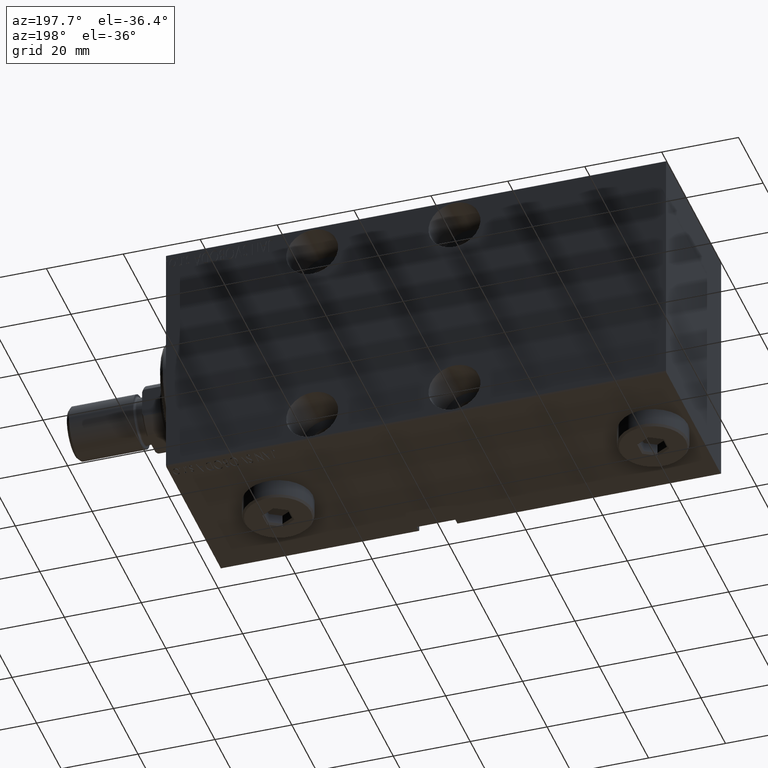
[diagram: clean part render]
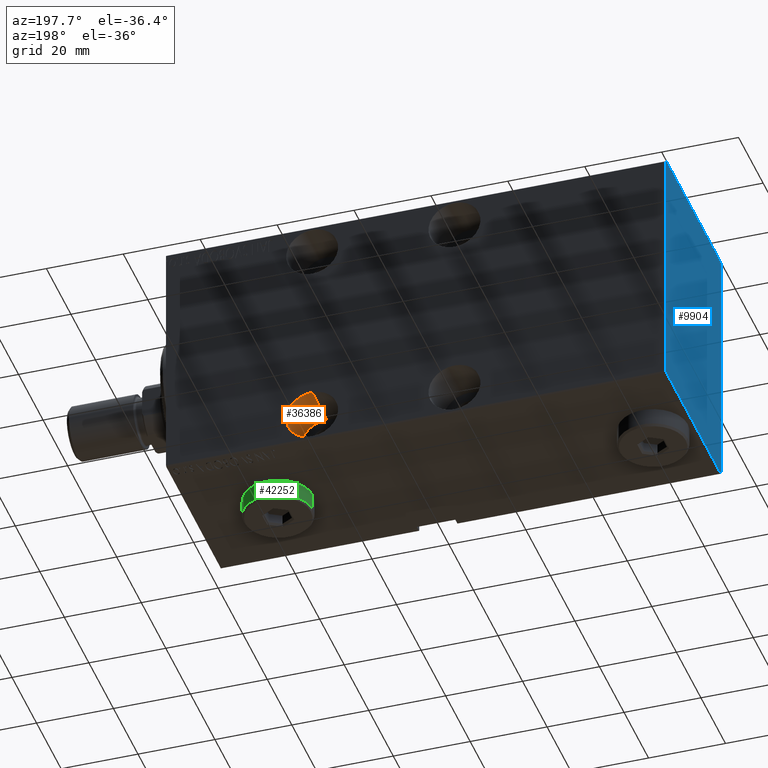
[diagram: same view with three faces highlighted in distinct colors, each labeled with its STEP entity id]
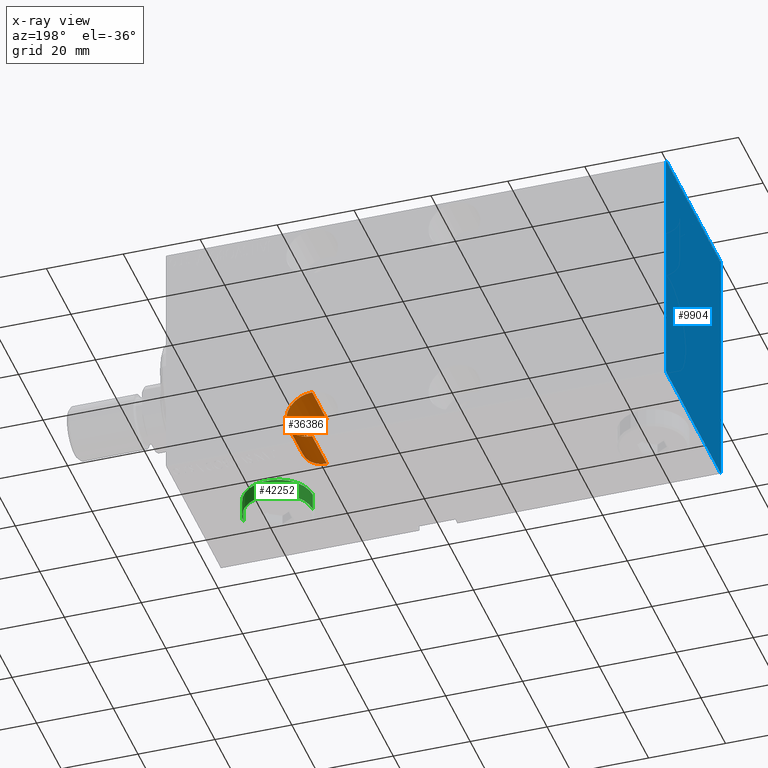
[diagram: x-ray of the same camera — body ghosted, the three highlighted faces saturated]
A machine part, auxiliary view with three faces highlighted in distinct colors.
The next image is the same camera in x-ray (body ghosted, the three faces saturated) — at least one of them is partly hidden behind the body in this view.
Their STEP definitions:

[orange] entity #36386 — the highlighted cylindrical surface (edge-blend (fillet) strip) has radius 6.75 mm, axis along (-0, 1, 0).
#695 = ORIENTED_EDGE ( 'NONE', *, *, #33101, .T. ) ;
#2848 = VERTEX_POINT ( 'NONE', #17039 ) ;
#3810 = DIRECTION ( 'NONE',  ( -0.000000000000000000, -1.000000000000000000, -0.000000000000000000 ) ) ;
#4310 = AXIS2_PLACEMENT_3D ( 'NONE', #9493, #23614, #33088 ) ;
#5292 = DIRECTION ( 'NONE',  ( 0.000000000000000000, -1.000000000000000000, 0.000000000000000000 ) ) ;
#6207 = EDGE_CURVE ( 'NONE', #36743, #26694, #41287, .T. ) ;
#7326 = CARTESIAN_POINT ( 'NONE',  ( 38.00000000000001421, -10.49999999999999467, -18.25000000000000355 ) ) ;
#7635 = LINE ( 'NONE', #41532, #21285 ) ;
#9493 = CARTESIAN_POINT ( 'NONE',  ( 38.00000000000001421, -22.49999999999999645, -25.00000000000000355 ) ) ;
#11358 = CARTESIAN_POINT ( 'NONE',  ( 38.00000000000001421, -10.49999999999999467, -31.75000000000000711 ) ) ;
#12230 = CARTESIAN_POINT ( 'NONE',  ( 38.00000000000001421, -22.49999999999999645, -31.75000000000000711 ) ) ;
#12418 = DIRECTION ( 'NONE',  ( -0.000000000000000000, -1.000000000000000000, -0.000000000000000000 ) ) ;
#12572 = VECTOR ( 'NONE', #41862, 1000.000000000000000 ) ;
#13393 = EDGE_LOOP ( 'NONE', ( #21019, #695, #35589, #26908 ) ) ;
#17039 = CARTESIAN_POINT ( 'NONE',  ( 38.00000000000001421, -22.49999999999999645, -18.25000000000000355 ) ) ;
#17081 = AXIS2_PLACEMENT_3D ( 'NONE', #33506, #12418, #30148 ) ;
#18529 = DIRECTION ( 'NONE',  ( 0.000000000000000000, 0.000000000000000000, -1.000000000000000000 ) ) ;
#21019 = ORIENTED_EDGE ( 'NONE', *, *, #6207, .F. ) ;
#21285 = VECTOR ( 'NONE', #3810, 1000.000000000000000 ) ;
#22554 = EDGE_CURVE ( 'NONE', #26694, #28512, #35148, .T. ) ;
#23614 = DIRECTION ( 'NONE',  ( 0.000000000000000000, -1.000000000000000000, 0.000000000000000000 ) ) ;
#25953 = CARTESIAN_POINT ( 'NONE',  ( 38.00000000000001421, -10.49999999999999467, -25.00000000000000355 ) ) ;
#26257 = AXIS2_PLACEMENT_3D ( 'NONE', #25953, #5292, #18529 ) ;
#26694 = VERTEX_POINT ( 'NONE', #44107 ) ;
#26754 = FACE_OUTER_BOUND ( 'NONE', #13393, .T. ) ;
#26908 = ORIENTED_EDGE ( 'NONE', *, *, #22554, .F. ) ;
#28512 = VERTEX_POINT ( 'NONE', #12230 ) ;
#30148 = DIRECTION ( 'NONE',  ( 0.000000000000000000, 0.000000000000000000, -1.000000000000000000 ) ) ;
#33088 = DIRECTION ( 'NONE',  ( 0.000000000000000000, 0.000000000000000000, -1.000000000000000000 ) ) ;
#33101 = EDGE_CURVE ( 'NONE', #36743, #2848, #7635, .T. ) ;
#33506 = CARTESIAN_POINT ( 'NONE',  ( 38.00000000000001421, -10.49999999999999467, -25.00000000000000355 ) ) ;
#34428 = CIRCLE ( 'NONE', #4310, 6.750000000000002665 ) ;
#35148 = LINE ( 'NONE', #11358, #12572 ) ;
#35589 = ORIENTED_EDGE ( 'NONE', *, *, #44259, .T. ) ;
#36386 = ADVANCED_FACE ( 'NONE', ( #26754 ), #36438, .F. ) ;
#36438 = CYLINDRICAL_SURFACE ( 'NONE', #17081, 6.750000000000002665 ) ;
#36743 = VERTEX_POINT ( 'NONE', #7326 ) ;
#41287 = CIRCLE ( 'NONE', #26257, 6.750000000000002665 ) ;
#41532 = CARTESIAN_POINT ( 'NONE',  ( 38.00000000000001421, -10.49999999999999467, -18.25000000000000711 ) ) ;
#41862 = DIRECTION ( 'NONE',  ( -0.000000000000000000, -1.000000000000000000, -0.000000000000000000 ) ) ;
#44107 = CARTESIAN_POINT ( 'NONE',  ( 38.00000000000001421, -10.49999999999999467, -31.75000000000000711 ) ) ;
#44259 = EDGE_CURVE ( 'NONE', #2848, #28512, #34428, .T. ) ;

[blue] entity #9904 — the highlighted planar face has unit normal (-1, -0, 0).
#105 = EDGE_LOOP ( 'NONE', ( #40822, #21552, #33130, #6252, #6726, #11280, #23983, #24200 ) ) ;
#1458 = CARTESIAN_POINT ( 'NONE',  ( 130.0000000000000000, 27.34999999999975273, 27.35000000000038511 ) ) ;
#1894 = CARTESIAN_POINT ( 'NONE',  ( 130.0000000000000000, -27.35000000000000497, 27.35000000000000497 ) ) ;
#3718 = DIRECTION ( 'NONE',  ( 0.000000000000000000, 0.000000000000000000, -1.000000000000000000 ) ) ;
#6252 = ORIENTED_EDGE ( 'NONE', *, *, #7435, .T. ) ;
#6726 = ORIENTED_EDGE ( 'NONE', *, *, #29962, .T. ) ;
#6737 = EDGE_CURVE ( 'NONE', #24883, #34307, #36350, .T. ) ;
#7094 = LINE ( 'NONE', #38071, #34304 ) ;
#7435 = EDGE_CURVE ( 'NONE', #34307, #24078, #22766, .T. ) ;
#8964 = CARTESIAN_POINT ( 'NONE',  ( 130.0000000000000000, 22.50000000000000355, -32.50000000000000000 ) ) ;
#8981 = LINE ( 'NONE', #13201, #33424 ) ;
#9084 = VERTEX_POINT ( 'NONE', #26037 ) ;
#9778 = CARTESIAN_POINT ( 'NONE',  ( 130.0000000000000000, 22.49999999999999645, 32.20000000000003126 ) ) ;
#9904 = ADVANCED_FACE ( 'NONE', ( #37192 ), #33620, .T. ) ;
#10590 = CARTESIAN_POINT ( 'NONE',  ( 130.0000000000000000, 22.50000000000000355, -32.20000000000001705 ) ) ;
#11280 = ORIENTED_EDGE ( 'NONE', *, *, #33694, .T. ) ;
#11993 = LINE ( 'NONE', #1894, #18436 ) ;
#12170 = DIRECTION ( 'NONE',  ( 0.000000000000000000, 1.000000000000000000, 0.000000000000000000 ) ) ;
#13201 = CARTESIAN_POINT ( 'NONE',  ( 130.0000000000000000, 22.49999999999999645, 32.50000000000000711 ) ) ;
#13550 = CARTESIAN_POINT ( 'NONE',  ( 130.0000000000000000, -27.35000000000000497, -27.35000000000000497 ) ) ;
#15542 = VECTOR ( 'NONE', #18495, 1000.000000000000000 ) ;
#18062 = CARTESIAN_POINT ( 'NONE',  ( 130.0000000000000000, -22.20000000000001350, -32.50000000000000000 ) ) ;
#18436 = VECTOR ( 'NONE', #25686, 1000.000000000000114 ) ;
#18495 = DIRECTION ( 'NONE',  ( -0.000000000000000000, -0.7071067811865556774, 0.7071067811865393571 ) ) ;
#20027 = CARTESIAN_POINT ( 'NONE',  ( 130.0000000000000000, -22.19999999999999929, 32.50000000000000000 ) ) ;
#20152 = DIRECTION ( 'NONE',  ( 0.000000000000000000, -1.000000000000000000, -1.541976423090495633E-16 ) ) ;
#20203 = VERTEX_POINT ( 'NONE', #21483 ) ;
#20325 = DIRECTION ( 'NONE',  ( 0.000000000000000000, 0.000000000000000000, -1.000000000000000000 ) ) ;
#20911 = VERTEX_POINT ( 'NONE', #40009 ) ;
#21445 = LINE ( 'NONE', #24380, #31336 ) ;
#21483 = CARTESIAN_POINT ( 'NONE',  ( 130.0000000000000000, 22.20000000000000639, -32.50000000000000000 ) ) ;
#21552 = ORIENTED_EDGE ( 'NONE', *, *, #31917, .T. ) ;
#22766 = LINE ( 'NONE', #1458, #15542 ) ;
#23600 = EDGE_CURVE ( 'NONE', #20911, #31059, #27467, .T. ) ;
#23983 = ORIENTED_EDGE ( 'NONE', *, *, #35866, .T. ) ;
#24078 = VERTEX_POINT ( 'NONE', #33621 ) ;
#24200 = ORIENTED_EDGE ( 'NONE', *, *, #23600, .T. ) ;
#24380 = CARTESIAN_POINT ( 'NONE',  ( 130.0000000000000000, 27.35000000000000853, -27.35000000000000853 ) ) ;
#24883 = VERTEX_POINT ( 'NONE', #10590 ) ;
#25686 = DIRECTION ( 'NONE',  ( 0.000000000000000000, -0.7071067811865474617, -0.7071067811865474617 ) ) ;
#26037 = CARTESIAN_POINT ( 'NONE',  ( 130.0000000000000000, -22.49999999999999645, 32.20000000000001705 ) ) ;
#26969 = VECTOR ( 'NONE', #36571, 1000.000000000000000 ) ;
#27254 = DIRECTION ( 'NONE',  ( -0.000000000000000000, 0.7071067811865474617, -0.7071067811865474617 ) ) ;
#27467 = LINE ( 'NONE', #13550, #41965 ) ;
#29962 = EDGE_CURVE ( 'NONE', #24078, #34503, #8981, .T. ) ;
#31059 = VERTEX_POINT ( 'NONE', #18062 ) ;
#31336 = VECTOR ( 'NONE', #35158, 1000.000000000000114 ) ;
#31917 = EDGE_CURVE ( 'NONE', #20203, #24883, #21445, .T. ) ;
#32598 = LINE ( 'NONE', #35504, #39491 ) ;
#33130 = ORIENTED_EDGE ( 'NONE', *, *, #6737, .T. ) ;
#33424 = VECTOR ( 'NONE', #20152, 1000.000000000000000 ) ;
#33620 = PLANE ( 'NONE',  #43556 ) ;
#33621 = CARTESIAN_POINT ( 'NONE',  ( 130.0000000000000000, 22.20000000000001350, 32.50000000000000711 ) ) ;
#33694 = EDGE_CURVE ( 'NONE', #34503, #9084, #11993, .T. ) ;
#34304 = VECTOR ( 'NONE', #3718, 1000.000000000000000 ) ;
#34307 = VERTEX_POINT ( 'NONE', #9778 ) ;
#34503 = VERTEX_POINT ( 'NONE', #20027 ) ;
#35158 = DIRECTION ( 'NONE',  ( -0.000000000000000000, 0.7071067811865474617, 0.7071067811865474617 ) ) ;
#35504 = CARTESIAN_POINT ( 'NONE',  ( 130.0000000000000000, -22.49999999999999645, -32.50000000000000000 ) ) ;
#35866 = EDGE_CURVE ( 'NONE', #9084, #20911, #7094, .T. ) ;
#36350 = LINE ( 'NONE', #8964, #26969 ) ;
#36571 = DIRECTION ( 'NONE',  ( 0.000000000000000000, -1.067522139062650425E-16, 1.000000000000000000 ) ) ;
#36973 = DIRECTION ( 'NONE',  ( 1.000000000000000000, 0.000000000000000000, 0.000000000000000000 ) ) ;
#37192 = FACE_OUTER_BOUND ( 'NONE', #105, .T. ) ;
#38071 = CARTESIAN_POINT ( 'NONE',  ( 130.0000000000000000, -22.49999999999999645, 32.50000000000000000 ) ) ;
#39491 = VECTOR ( 'NONE', #12170, 1000.000000000000000 ) ;
#40009 = CARTESIAN_POINT ( 'NONE',  ( 130.0000000000000000, -22.49999999999999645, -32.20000000000001705 ) ) ;
#40550 = CARTESIAN_POINT ( 'NONE',  ( 130.0000000000000000, 0.000000000000000000, 0.000000000000000000 ) ) ;
#40822 = ORIENTED_EDGE ( 'NONE', *, *, #42001, .T. ) ;
#41965 = VECTOR ( 'NONE', #27254, 1000.000000000000114 ) ;
#42001 = EDGE_CURVE ( 'NONE', #31059, #20203, #32598, .T. ) ;
#43556 = AXIS2_PLACEMENT_3D ( 'NONE', #40550, #36973, #20325 ) ;

[green] entity #42252 — the highlighted cylindrical surface (edge-blend (fillet) strip) has radius 9 mm, axis along (0, 0, 1).
#374 = CIRCLE ( 'NONE', #31207, 9.000000000000001776 ) ;
#2328 = LINE ( 'NONE', #43405, #37894 ) ;
#4671 = CARTESIAN_POINT ( 'NONE',  ( 9.000000000000001776, 1.102182119232617911E-15, 0.000000000000000000 ) ) ;
#5591 = CARTESIAN_POINT ( 'NONE',  ( 0.000000000000000000, 0.000000000000000000, 5.000000000000000000 ) ) ;
#6863 = CARTESIAN_POINT ( 'NONE',  ( 0.000000000000000000, 0.000000000000000000, 0.000000000000000000 ) ) ;
#6966 = VERTEX_POINT ( 'NONE', #8013 ) ;
#8013 = CARTESIAN_POINT ( 'NONE',  ( -9.000000000000001776, 0.000000000000000000, 4.500000000000006217 ) ) ;
#8286 = CYLINDRICAL_SURFACE ( 'NONE', #27185, 9.000000000000001776 ) ;
#8450 = DIRECTION ( 'NONE',  ( -0.000000000000000000, -0.000000000000000000, -1.000000000000000000 ) ) ;
#9767 = VECTOR ( 'NONE', #8450, 1000.000000000000000 ) ;
#10694 = DIRECTION ( 'NONE',  ( 0.000000000000000000, 0.000000000000000000, 1.000000000000000000 ) ) ;
#13959 = EDGE_CURVE ( 'NONE', #19771, #19254, #2328, .T. ) ;
#15128 = DIRECTION ( 'NONE',  ( -0.000000000000000000, -0.000000000000000000, -1.000000000000000000 ) ) ;
#18678 = ORIENTED_EDGE ( 'NONE', *, *, #25807, .T. ) ;
#18992 = CARTESIAN_POINT ( 'NONE',  ( 0.000000000000000000, 0.000000000000000000, 4.500000000000006217 ) ) ;
#19220 = DIRECTION ( 'NONE',  ( 0.000000000000000000, 0.000000000000000000, -1.000000000000000000 ) ) ;
#19254 = VERTEX_POINT ( 'NONE', #4671 ) ;
#19771 = VERTEX_POINT ( 'NONE', #21055 ) ;
#21055 = CARTESIAN_POINT ( 'NONE',  ( 9.000000000000001776, 1.102182119232617911E-15, 4.500000000000006217 ) ) ;
#22142 = LINE ( 'NONE', #25742, #9767 ) ;
#22251 = EDGE_CURVE ( 'NONE', #34070, #19254, #31178, .T. ) ;
#24039 = ORIENTED_EDGE ( 'NONE', *, *, #26599, .T. ) ;
#24157 = ORIENTED_EDGE ( 'NONE', *, *, #13959, .F. ) ;
#25191 = CARTESIAN_POINT ( 'NONE',  ( -9.000000000000001776, 0.000000000000000000, 0.000000000000000000 ) ) ;
#25577 = DIRECTION ( 'NONE',  ( -0.000000000000000000, -0.000000000000000000, -1.000000000000000000 ) ) ;
#25742 = CARTESIAN_POINT ( 'NONE',  ( -9.000000000000001776, 0.000000000000000000, 5.000000000000000000 ) ) ;
#25807 = EDGE_CURVE ( 'NONE', #6966, #34070, #22142, .T. ) ;
#26024 = FACE_OUTER_BOUND ( 'NONE', #36638, .T. ) ;
#26599 = EDGE_CURVE ( 'NONE', #19771, #6966, #374, .T. ) ;
#27185 = AXIS2_PLACEMENT_3D ( 'NONE', #5591, #25577, #39276 ) ;
#31178 = CIRCLE ( 'NONE', #44079, 9.000000000000001776 ) ;
#31207 = AXIS2_PLACEMENT_3D ( 'NONE', #18992, #19220, #32936 ) ;
#32936 = DIRECTION ( 'NONE',  ( 1.000000000000000000, 0.000000000000000000, 0.000000000000000000 ) ) ;
#33355 = ORIENTED_EDGE ( 'NONE', *, *, #22251, .T. ) ;
#34070 = VERTEX_POINT ( 'NONE', #25191 ) ;
#36638 = EDGE_LOOP ( 'NONE', ( #24157, #24039, #18678, #33355 ) ) ;
#37402 = DIRECTION ( 'NONE',  ( 1.000000000000000000, 0.000000000000000000, 0.000000000000000000 ) ) ;
#37894 = VECTOR ( 'NONE', #15128, 1000.000000000000000 ) ;
#39276 = DIRECTION ( 'NONE',  ( -1.000000000000000000, 0.000000000000000000, 0.000000000000000000 ) ) ;
#42252 = ADVANCED_FACE ( 'NONE', ( #26024 ), #8286, .T. ) ;
#43405 = CARTESIAN_POINT ( 'NONE',  ( 9.000000000000001776, 1.102182119232617911E-15, 5.000000000000000000 ) ) ;
#44079 = AXIS2_PLACEMENT_3D ( 'NONE', #6863, #10694, #37402 ) ;